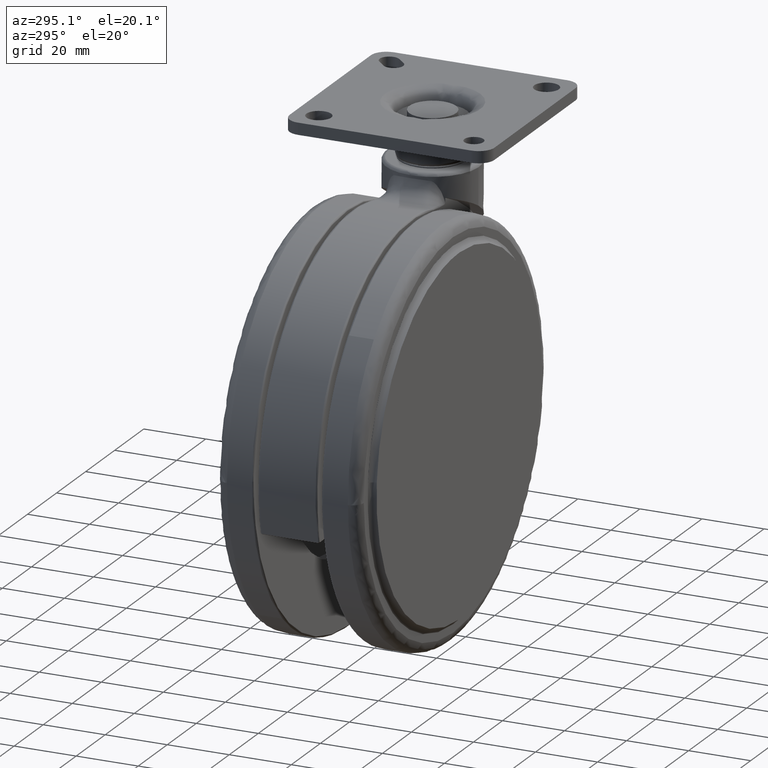
[diagram: clean part render]
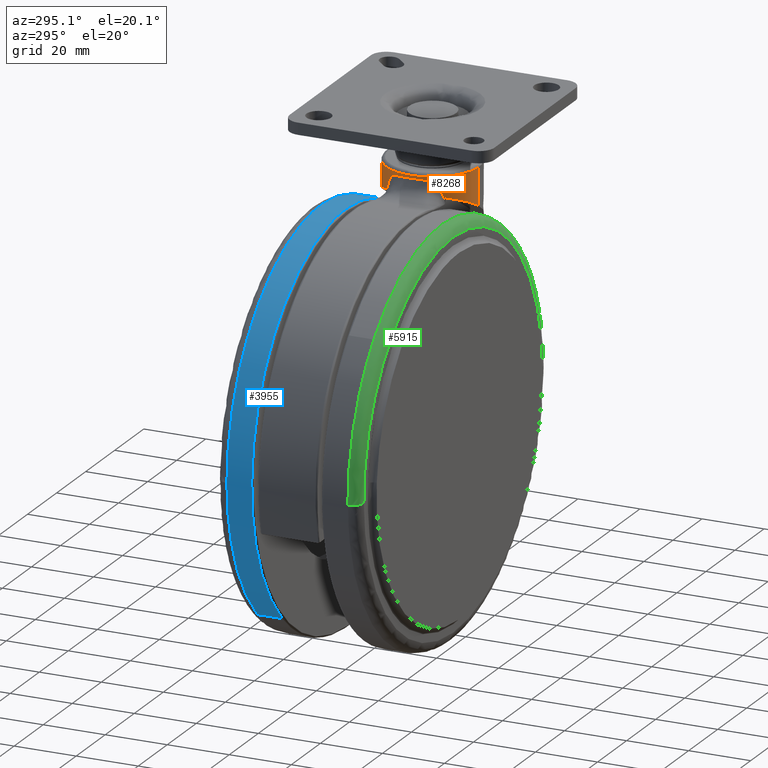
[diagram: same view with three faces highlighted in distinct colors, each labeled with its STEP entity id]
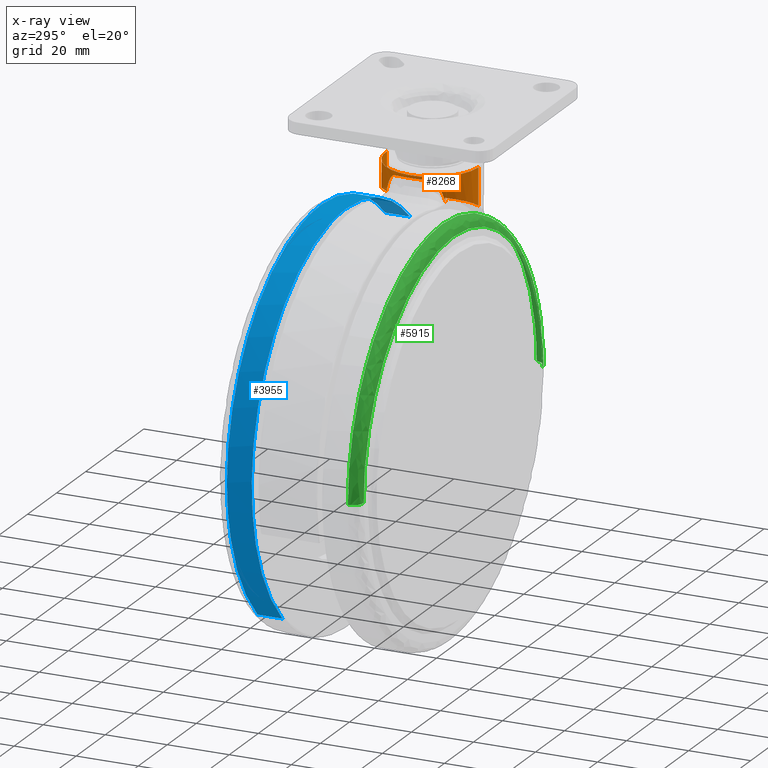
[diagram: x-ray of the same camera — body ghosted, the three highlighted faces saturated]
A machine part, auxiliary view with three faces highlighted in distinct colors.
The next image is the same camera in x-ray (body ghosted, the three faces saturated) — at least one of them is partly hidden behind the body in this view.
Their STEP definitions:

[orange] entity #8268 — the highlighted face is a freeform B-spline surface patch.
#7206=CARTESIAN_POINT('',(-14.995262839249721,0.376951431650091,-0.999999999963149));
#7207=VERTEX_POINT('',#7206);
#7223=CARTESIAN_POINT('',(-0.581027696793519,-14.988184940685739,-1.000003525327162));
#7224=VERTEX_POINT('',#7223);
#7225=CARTESIAN_POINT('',(-0.581027696793519,-14.988184940685739,-1.000003525327162));
#7226=CARTESIAN_POINT('',(-2.221881867319267,-14.923459520473660,-1.000003209881734));
#7227=CARTESIAN_POINT('',(-4.396318039646086,-14.478948089147041,-1.000002743903072));
#7228=CARTESIAN_POINT('',(-7.951715841885855,-12.878649637823409,-1.000001905507170));
#7229=CARTESIAN_POINT('',(-9.774755034183629,-11.504830959383879,-1.000001381199604));
#7230=CARTESIAN_POINT('',(-12.271773316455970,-8.842832239391411,-1.000000736492092));
#7231=CARTESIAN_POINT('',(-13.520004443380129,-6.845864435616425,-1.000000367163475));
#7232=CARTESIAN_POINT('',(-14.772648929708410,-3.157115976543185,-1.000000080154725));
#7233=CARTESIAN_POINT('',(-15.034982536868069,-1.204105920729850,-0.999999990851010));
#7234=CARTESIAN_POINT('',(-14.995262839249721,0.376951431650091,-0.999999999963149));
#7235=B_SPLINE_CURVE_WITH_KNOTS('',3,(#7225,#7226,#7227,#7228,#7229,#7230,#7231,#7232,#7233,#7234),.UNSPECIFIED.,.F.,.U.,(4,1,1,2,1,1,4),(-0.000005821422697,4.926888636849576,6.569186415890847,11.678558646066261,17.517832323458819,18.612697292125290,23.357096976029911),.UNSPECIFIED.);
#7236=EDGE_CURVE('',#7224,#7207,#7235,.T.);
#7690=CARTESIAN_POINT('',(0.581046438224664,14.988673614872880,-1.000003329813259));
#7691=VERTEX_POINT('',#7690);
#7705=CARTESIAN_POINT('',(-14.995262839249721,0.376951431650091,-0.999999999963149));
#7706=CARTESIAN_POINT('',(-14.945668679372339,2.356816824336658,-1.000000004435609));
#7707=CARTESIAN_POINT('',(-14.191006820130211,5.680076454444194,-1.000000144011741));
#7708=CARTESIAN_POINT('',(-12.106499277216470,9.018408399889520,-1.000000547292843));
#7709=CARTESIAN_POINT('',(-9.448302867714441,11.879272115115761,-1.000001085183200));
#7710=CARTESIAN_POINT('',(-7.267301224415199,13.270945977765820,-1.000001535882976));
#7711=CARTESIAN_POINT('',(-3.516030385572528,14.724302415414121,-1.000002372664652));
#7712=CARTESIAN_POINT('',(-1.459989990871364,15.069031651187650,-1.000002832269927));
#7713=CARTESIAN_POINT('',(0.581046438224664,14.988673614872880,-1.000003329813259));
#7714=B_SPLINE_CURVE_WITH_KNOTS('',3,(#7705,#7706,#7707,#7708,#7709,#7710,#7711,#7712,#7713),.UNSPECIFIED.,.F.,.U.,(4,1,1,1,2,4),(-0.000005633504745,5.941418121978291,10.026142665776630,11.697168434309081,17.638587521659240,23.765670615202790),.UNSPECIFIED.);
#7715=EDGE_CURVE('',#7207,#7691,#7714,.T.);
#7936=CARTESIAN_POINT('',(-0.581055671083553,-14.988745828731510,-12.853470431553250));
#7937=VERTEX_POINT('',#7936);
#8060=CARTESIAN_POINT('',(0.581049382154922,14.988741832706300,-13.551163716626951));
#8061=VERTEX_POINT('',#8060);
#8091=CARTESIAN_POINT('',(0.581049382154922,14.988741832706300,-13.551163716626951));
#8092=CARTESIAN_POINT('',(0.581046438224664,14.988673614872880,-1.000003329813259));
#8093=QUASI_UNIFORM_CURVE('',1,(#8091,#8092),.UNSPECIFIED.,.F.,.U.);
#8094=EDGE_CURVE('',#8061,#7691,#8093,.T.);
#8098=CARTESIAN_POINT('',(-0.581055671083553,-14.988745828731510,-12.853470431553250));
#8099=CARTESIAN_POINT('',(-0.581027696793519,-14.988184940685739,-1.000003525327162));
#8100=QUASI_UNIFORM_CURVE('',1,(#8098,#8099),.UNSPECIFIED.,.F.,.U.);
#8101=EDGE_CURVE('',#7937,#7224,#8100,.T.);
#8106=CARTESIAN_POINT('',(0.581049229520434,14.988741834886410,-14.178095141227219));
#8107=CARTESIAN_POINT('',(-14.407692605365950,15.569791064407077,-14.178095141227221));
#8108=CARTESIAN_POINT('',(-14.988741834886611,0.581049229520690,-14.178095141227219));
#8109=CARTESIAN_POINT('',(-15.569791064407276,-14.407692605365694,-14.178095141227221));
#8110=CARTESIAN_POINT('',(-0.581049229520889,-14.988741834886360,-14.178095141227219));
#8111=CARTESIAN_POINT('',(0.581049229520434,14.988741834886410,-0.373068681588902));
#8112=CARTESIAN_POINT('',(-14.407692605365950,15.569791064407077,-0.373068681588902));
#8113=CARTESIAN_POINT('',(-14.988741834886611,0.581049229520690,-0.373068681588902));
#8114=CARTESIAN_POINT('',(-15.569791064407276,-14.407692605365694,-0.373068681588902));
#8115=CARTESIAN_POINT('',(-0.581049229520889,-14.988741834886360,-0.373068681588902));
#8123=(BOUNDED_SURFACE()B_SPLINE_SURFACE(2,1,((#8106,#8111),(#8107,#8112),(#8108,#8113),(#8109,#8114),(#8110,#8115)),.UNSPECIFIED.,.F.,.F.,.U.)B_SPLINE_SURFACE_WITH_KNOTS((3,2,3),(2,2),(0.0,24.852813742385699,49.705627484771391),(0.0,13.805026459638320),.UNSPECIFIED.)GEOMETRIC_REPRESENTATION_ITEM()RATIONAL_B_SPLINE_SURFACE(((1.0,1.0),(0.707106781186548,0.707106781186548),(1.0,1.0),(0.707106781186548,0.707106781186548),(1.0,1.0)))REPRESENTATION_ITEM('')SURFACE());
#8124=CARTESIAN_POINT('',(-11.608186766244261,-9.499999999999840,-7.649383314007720));
#8125=VERTEX_POINT('',#8124);
#8126=CARTESIAN_POINT('',(-11.608186766244261,-9.499999999999840,-7.649383314007720));
#8127=CARTESIAN_POINT('',(-11.213146701409499,-9.982704767841632,-7.794106785338895));
#8128=CARTESIAN_POINT('',(-10.794725856363350,-10.432794721896300,-7.951549861427642));
#8129=CARTESIAN_POINT('',(-9.915365130329265,-11.271860156883781,-8.293497244719189));
#8130=CARTESIAN_POINT('',(-9.454406212123985,-11.660813418175790,-8.478002456493375));
#8131=CARTESIAN_POINT('',(-8.732805053693616,-12.199515090925781,-8.776952296718111));
#8132=CARTESIAN_POINT('',(-8.487231199305013,-12.371609538743749,-8.880307841373842));
#8133=CARTESIAN_POINT('',(-8.111420180187809,-12.618528919298340,-9.041202718210380));
#8134=CARTESIAN_POINT('',(-7.984907412990158,-12.698963949904609,-9.095811753587041));
#8135=CARTESIAN_POINT('',(-7.729406778885008,-12.856076344906031,-9.207041276619554));
#8136=CARTESIAN_POINT('',(-7.600998591352334,-12.932396112661500,-9.263409746149240));
#8137=CARTESIAN_POINT('',(-6.956281742583611,-13.302777511497810,-9.548836610649722));
#8138=CARTESIAN_POINT('',(-6.431469403289630,-13.563616469048860,-9.788858391972797));
#8139=CARTESIAN_POINT('',(-5.366247244177936,-14.019232091139610,-10.293246057743650));
#8140=CARTESIAN_POINT('',(-4.825828911311247,-14.213988494602020,-10.557611620882501));
#8141=CARTESIAN_POINT('',(-4.004717573826369,-14.458342878441931,-10.973431774860110));
#8142=CARTESIAN_POINT('',(-3.729260721254046,-14.531813636343831,-11.115253351413910));
#8143=CARTESIAN_POINT('',(-3.174981410175787,-14.662894723630590,-11.405532700699910));
#8144=CARTESIAN_POINT('',(-2.898437064486981,-14.719967938526519,-11.552797918032599));
#8145=CARTESIAN_POINT('',(-2.070801126105388,-14.866933017860561,-12.000919558977969));
#8146=CARTESIAN_POINT('',(-1.521656517532457,-14.932655389831000,-12.308127530862080));
#8147=CARTESIAN_POINT('',(-0.843730397084025,-14.976828100546451,-12.699902509917001));
#8148=CARTESIAN_POINT('',(-0.712310902942108,-14.983653738026650,-12.776438463395770));
#8149=CARTESIAN_POINT('',(-0.581055671083553,-14.988745828731510,-12.853470431553250));
#8150=B_SPLINE_CURVE_WITH_KNOTS('',3,(#8126,#8127,#8128,#8129,#8130,#8131,#8132,#8133,#8134,#8135,#8136,#8137,#8138,#8139,#8140,#8141,#8142,#8143,#8144,#8145,#8146,#8147,#8148,#8149),.UNSPECIFIED.,.F.,.U.,(4,2,2,2,2,2,2,2,2,2,2,4),(0.0,0.062500000000000,0.125000000000001,0.156250000000001,0.171875000000001,0.187500000000002,0.250000000000002,0.312500000000003,0.343750000000003,0.375000000000003,0.437500000000003,0.452552536085894),.UNSPECIFIED.);
#8151=EDGE_CURVE('',#8125,#7937,#8150,.T.);
#8152=ORIENTED_EDGE('',*,*,#8151,.T.);
#8153=ORIENTED_EDGE('',*,*,#8101,.T.);
#8154=ORIENTED_EDGE('',*,*,#7236,.T.);
#8155=ORIENTED_EDGE('',*,*,#7715,.T.);
#8156=ORIENTED_EDGE('',*,*,#8094,.F.);
#8157=CARTESIAN_POINT('',(-11.759657102265839,9.311845404490668,-7.594095425069170));
#8158=VERTEX_POINT('',#8157);
#8159=CARTESIAN_POINT('',(0.581049382154922,14.988741832706300,-13.551163716626951));
#8160=CARTESIAN_POINT('',(0.567863276956664,14.989252995358250,-13.543067346910110));
#8161=CARTESIAN_POINT('',(0.554676540455184,14.989746757398921,-13.534976786999660));
#8162=CARTESIAN_POINT('',(-0.005331310199047,15.009975747025100,-13.191653768315151));
#8163=CARTESIAN_POINT('',(-0.553241094492944,14.999890170460230,-12.866390257197571));
#8164=CARTESIAN_POINT('',(-1.650785519755342,14.919037659611631,-12.235261397926021));
#8165=CARTESIAN_POINT('',(-2.200421604358285,14.848277564310891,-11.929396827090439));
#8166=CARTESIAN_POINT('',(-3.300747192293041,14.643027953131190,-11.336668702007829));
#8167=CARTESIAN_POINT('',(-3.851439874269489,14.508559589353620,-11.049805224653470));
#8168=CARTESIAN_POINT('',(-4.677551670809693,14.254945567359069,-10.633566710998011));
#8169=CARTESIAN_POINT('',(-4.952931890268636,14.161734726244219,-10.497164397408630));
#8170=CARTESIAN_POINT('',(-5.365898573099035,14.008165073748099,-10.296062698626830));
#8171=CARTESIAN_POINT('',(-5.503116323320811,13.954831070907410,-10.229818639232461));
#8172=CARTESIAN_POINT('',(-5.775571346812553,13.844290341921530,-10.099397160222910));
#8173=CARTESIAN_POINT('',(-5.910976918198898,13.787021488536579,-10.035137676542810));
#8174=CARTESIAN_POINT('',(-6.583853983587343,13.490693853561959,-9.718489828398015));
#8175=CARTESIAN_POINT('',(-7.108914835805527,13.221770493498580,-9.480024445467352));
#8176=CARTESIAN_POINT('',(-8.130851299442035,12.619078554885601,-9.030497017110301));
#8177=CARTESIAN_POINT('',(-8.627736776555658,12.285324785509699,-8.819436545863193));
#8178=CARTESIAN_POINT('',(-9.349756219368214,11.733448520644901,-8.522138564417217));
#8179=CARTESIAN_POINT('',(-9.586534361253344,11.540929073723300,-8.426259333577466));
#8180=CARTESIAN_POINT('',(-9.935476041879438,11.238771371970079,-8.287156499839671));
#8181=CARTESIAN_POINT('',(-10.050751484344550,11.135820769511909,-8.241575204358481));
#8182=CARTESIAN_POINT('',(-10.279150135872440,10.925345891352300,-8.151970193215634));
#8183=CARTESIAN_POINT('',(-10.392054106092671,10.818015549810090,-8.108033242876987));
#8184=CARTESIAN_POINT('',(-10.725614816827321,10.490862732952870,-7.979221691128639));
#8185=CARTESIAN_POINT('',(-10.941617562590830,10.265432102346010,-7.897150303212587));
#8186=CARTESIAN_POINT('',(-11.360579932878791,9.799761041955502,-7.740247385621249));
#8187=CARTESIAN_POINT('',(-11.563698521107581,9.559315712310598,-7.665358631376420));
#8188=CARTESIAN_POINT('',(-11.759657102265839,9.311845404490668,-7.594095425069170));
#8189=B_SPLINE_CURVE_WITH_KNOTS('',3,(#8159,#8160,#8161,#8162,#8163,#8164,#8165,#8166,#8167,#8168,#8169,#8170,#8171,#8172,#8173,#8174,#8175,#8176,#8177,#8178,#8179,#8180,#8181,#8182,#8183,#8184,#8185,#8186,#8187,#8188),.UNSPECIFIED.,.F.,.U.,(4,2,2,2,2,2,2,2,2,2,2,2,2,2,4),(0.498492722263758,0.499999999999999,0.562499999999999,0.624999999999999,0.687499999999999,0.718749999999999,0.734375000000000,0.750000000000000,0.812500000000000,0.875000000000000,0.906250000000000,0.921875000000000,0.937500000000000,0.968750000000000,1.0),.UNSPECIFIED.);
#8190=EDGE_CURVE('',#8061,#8158,#8189,.T.);
#8191=ORIENTED_EDGE('',*,*,#8190,.T.);
#8192=CARTESIAN_POINT('',(-11.760727374015181,9.310412290629619,-7.908198592691811));
#8193=VERTEX_POINT('',#8192);
#8194=CARTESIAN_POINT('',(-11.759657102265839,9.311845404490668,-7.594095425069170));
#8195=CARTESIAN_POINT('',(-11.760013899878670,9.311367731828524,-7.698796480943384));
#8196=CARTESIAN_POINT('',(-11.760370657129981,9.310890027206249,-7.803497536817597));
#8197=CARTESIAN_POINT('',(-11.760727374015181,9.310412290629619,-7.908198592691811));
#8198=B_SPLINE_CURVE_WITH_KNOTS('',3,(#8194,#8195,#8196,#8197),.UNSPECIFIED.,.F.,.U.,(4,4),(0.0,0.999580436603883),.UNSPECIFIED.);
#8199=EDGE_CURVE('',#8158,#8193,#8198,.T.);
#8200=ORIENTED_EDGE('',*,*,#8199,.T.);
#8201=CARTESIAN_POINT('',(-11.760715707959699,-9.310304679603330,-7.917211366837540));
#8202=VERTEX_POINT('',#8201);
#8203=CARTESIAN_POINT('',(-11.760727374015181,9.310412290629619,-7.908198592691811));
#8204=CARTESIAN_POINT('',(-11.761032507318090,9.310027589664697,-7.906811290454749));
#8205=CARTESIAN_POINT('',(-11.811150911126150,9.246832317487588,-7.678998866635697));
#8206=CARTESIAN_POINT('',(-11.911873365987450,9.117319093893114,-7.238243415182060));
#8207=CARTESIAN_POINT('',(-12.066282576899690,8.912045729361019,-6.602219687325074));
#8208=CARTESIAN_POINT('',(-12.221042048009080,8.698613936952331,-6.006250171979874));
#8209=CARTESIAN_POINT('',(-12.375670123911140,8.477199051662620,-5.450207808271371));
#8210=CARTESIAN_POINT('',(-12.529880623912801,8.247576117848295,-4.934107720402886));
#8211=CARTESIAN_POINT('',(-12.683306686284570,8.009647995236097,-4.457920500191798));
#8212=CARTESIAN_POINT('',(-12.835653673852590,7.763194320568684,-4.021656317350209));
#8213=CARTESIAN_POINT('',(-13.022600161376690,7.447083565497170,-3.529935511116535));
#8214=CARTESIAN_POINT('',(-13.242369550566471,7.052172530468475,-3.024332027731216));
#8215=CARTESIAN_POINT('',(-13.463622512455199,6.617308919876209,-2.629660494846905));
#8216=CARTESIAN_POINT('',(-13.632667077788620,6.258301059152105,-2.409797513450673));
#8217=CARTESIAN_POINT('',(-13.745696863789380,6.005557130480864,-2.296904276879198));
#8218=CARTESIAN_POINT('',(-13.863580017014311,5.728641353894219,-2.234406827834977));
#8219=CARTESIAN_POINT('',(-14.105629372231100,5.126833159169156,-2.154525581439933));
#8220=CARTESIAN_POINT('',(-14.434663364604530,4.152373806960688,-2.057161635212194));
#8221=CARTESIAN_POINT('',(-14.755082852627959,2.812716150977963,-1.961972558395183));
#8222=CARTESIAN_POINT('',(-14.954112045907300,1.421903150005391,-1.905886795580871));
#8223=CARTESIAN_POINT('',(-15.044359428748200,-0.465381592406427,-1.881091469284715));
#8224=CARTESIAN_POINT('',(-14.823746505829551,-2.799940062199902,-1.940890072061245));
#8225=CARTESIAN_POINT('',(-14.285656261287439,-4.670150606164357,-2.099132385162966));
#8226=CARTESIAN_POINT('',(-13.902043270656749,-5.633694930984579,-2.219574988953552));
#8227=CARTESIAN_POINT('',(-13.799667463511200,-5.881261604653441,-2.256911453255461));
#8228=CARTESIAN_POINT('',(-13.613616156468931,-6.308454067240988,-2.409548529422549));
#8229=CARTESIAN_POINT('',(-13.324269993566300,-6.902530881279645,-2.852900394690433));
#8230=CARTESIAN_POINT('',(-12.976066298922181,-7.535887584762198,-3.637542233632385));
#8231=CARTESIAN_POINT('',(-12.625269943091080,-8.108846986873571,-4.636525783229013));
#8232=CARTESIAN_POINT('',(-12.272141758604301,-8.632750937826849,-5.820176902401713));
#8233=CARTESIAN_POINT('',(-11.984181272920120,-9.025869856192037,-6.928393151273183));
#8234=CARTESIAN_POINT('',(-11.820087373755690,-9.235485779231102,-7.649805863315511));
#8235=CARTESIAN_POINT('',(-11.760715707959699,-9.310304679603330,-7.917211366837540));
#8236=B_SPLINE_CURVE_WITH_KNOTS('',3,(#8203,#8204,#8205,#8206,#8207,#8208,#8209,#8210,#8211,#8212,#8213,#8214,#8215,#8216,#8217,#8218,#8219,#8220,#8221,#8222,#8223,#8224,#8225,#8226,#8227,#8228,#8229,#8230,#8231,#8232,#8233,#8234,#8235),.UNSPECIFIED.,.F.,.U.,(4,1,1,1,1,1,1,1,1,1,1,1,1,1,1,1,1,1,1,1,1,1,1,1,1,1,1,1,1,1,4),(0.026974525377899,0.027132948878175,0.052990535331715,0.077592784479808,0.100962948618265,0.123128157900532,0.144120214834351,0.163976559572438,0.182741431482123,0.200467243951502,0.230012875593796,0.255534450696687,0.267515376235882,0.278763989496629,0.287552378311506,0.300508699239687,0.349108472927283,0.398564435423337,0.448917106041140,0.500204875753624,0.601676374579347,0.699706600447437,0.708917168554291,0.714075260115650,0.728799854409215,0.761210144402907,0.798366576062661,0.843054119495339,0.890431560307077,0.942652608615340,0.973217928481687),.UNSPECIFIED.);
#8237=EDGE_CURVE('',#8193,#8202,#8236,.T.);
#8238=ORIENTED_EDGE('',*,*,#8237,.T.);
#8239=CARTESIAN_POINT('',(-11.608186766244261,-9.499999999999801,-9.261782082419348));
#8240=VERTEX_POINT('',#8239);
#8241=CARTESIAN_POINT('',(-11.760715707959699,-9.310304679603330,-7.917211366837540));
#8242=CARTESIAN_POINT('',(-11.758016561440410,-9.313713435829669,-7.924977447076127));
#8243=CARTESIAN_POINT('',(-11.749920298452070,-9.323938207655431,-7.948279049944327));
#8244=CARTESIAN_POINT('',(-11.739784622680711,-9.336702835427875,-7.999436515091959));
#8245=CARTESIAN_POINT('',(-11.724646947037870,-9.355726086020008,-8.073827300216186));
#8246=CARTESIAN_POINT('',(-11.708355798520300,-9.376118665924938,-8.163370805353759));
#8247=CARTESIAN_POINT('',(-11.692009865751841,-9.396506911849984,-8.256549008160627));
#8248=CARTESIAN_POINT('',(-11.677675311105689,-9.414325926238366,-8.344646904102717));
#8249=CARTESIAN_POINT('',(-11.665483889857761,-9.429438773733027,-8.426645350773201));
#8250=CARTESIAN_POINT('',(-11.655300962844780,-9.442031545538793,-8.502521274790519));
#8251=CARTESIAN_POINT('',(-11.645959475776630,-9.453564875591706,-8.588128844768137));
#8252=CARTESIAN_POINT('',(-11.632978714686351,-9.469555583813214,-8.709100388778204));
#8253=CARTESIAN_POINT('',(-11.621852076992131,-9.483229023463723,-8.887969366660579));
#8254=CARTESIAN_POINT('',(-11.613998106309470,-9.492869112891393,-9.058975269849265));
#8255=CARTESIAN_POINT('',(-11.608090069294590,-9.500108288975703,-9.189872046284298));
#8256=CARTESIAN_POINT('',(-11.608158142884401,-9.500032054726821,-9.240495921392743));
#8257=CARTESIAN_POINT('',(-11.608186766244261,-9.499999999999801,-9.261782082419348));
#8258=B_SPLINE_CURVE_WITH_KNOTS('',3,(#8241,#8242,#8243,#8244,#8245,#8246,#8247,#8248,#8249,#8250,#8251,#8252,#8253,#8254,#8255,#8256,#8257),.UNSPECIFIED.,.F.,.U.,(4,1,1,1,1,1,1,1,1,1,1,1,1,1,4),(0.000035867798653,0.019439373809956,0.058251354912004,0.116667597851933,0.190608898438667,0.261772940197439,0.328001350036767,0.389320007282076,0.445761545294118,0.497367850466181,0.579020122867662,0.713630699162877,0.889499660060882,0.953537179356582,1.0),.UNSPECIFIED.);
#8259=EDGE_CURVE('',#8202,#8240,#8258,.T.);
#8260=ORIENTED_EDGE('',*,*,#8259,.T.);
#8261=CARTESIAN_POINT('',(-11.608186766244261,-9.499999999999801,-9.261782082419348));
#8262=CARTESIAN_POINT('',(-11.608186766244261,-9.499999999999840,-7.649383314007720));
#8263=QUASI_UNIFORM_CURVE('',1,(#8261,#8262),.UNSPECIFIED.,.F.,.U.);
#8264=EDGE_CURVE('',#8240,#8125,#8263,.T.);
#8265=ORIENTED_EDGE('',*,*,#8264,.T.);
#8266=EDGE_LOOP('',(#8152,#8153,#8154,#8155,#8156,#8191,#8200,#8238,#8260,#8265));
#8267=FACE_OUTER_BOUND('',#8266,.T.);
#8268=ADVANCED_FACE('',(#8267),#8123,.T.);

[blue] entity #3955 — the highlighted face is a freeform B-spline surface patch.
#3720=CARTESIAN_POINT('',(-78.913360412238120,11.499999998409180,-119.423029717504900));
#3721=VERTEX_POINT('',#3720);
#3722=CARTESIAN_POINT('',(-99.979472303414468,11.499999996547491,-69.866543796182043));
#3723=VERTEX_POINT('',#3722);
#3724=CARTESIAN_POINT('',(-78.913360412238205,11.499999998409180,-119.423029717505050));
#3725=CARTESIAN_POINT('',(-100.0,11.499999997349910,-100.100687003389960));
#3726=CARTESIAN_POINT('',(-99.999999999999986,11.499999996590340,-71.500000000000014));
#3727=CARTESIAN_POINT('',(-99.999999999999986,11.499999996568643,-70.683142911979829));
#3728=CARTESIAN_POINT('',(-99.979472303414468,11.499999996547491,-69.866543796182043));
#3736=(BOUNDED_CURVE()B_SPLINE_CURVE(2,(#3724,#3725,#3726,#3727,#3728),.UNSPECIFIED.,.F.,.U.)B_SPLINE_CURVE_WITH_KNOTS((3,2,3),(0.618415199373145,0.750000000000000,0.754420108230195),.UNSPECIFIED.)CURVE()GEOMETRIC_REPRESENTATION_ITEM()RATIONAL_B_SPLINE_CURVE((0.853959782036605,0.845838816789896,1.0,0.994821521091817,0.989826157681570))REPRESENTATION_ITEM(''));
#3737=EDGE_CURVE('',#3721,#3723,#3736,.T.);
#3823=CARTESIAN_POINT('',(-35.0,11.500000000000000,-6.499999999999992));
#3824=VERTEX_POINT('',#3823);
#3825=CARTESIAN_POINT('',(-99.979472303414468,11.499999996547491,-69.866543796182043));
#3826=CARTESIAN_POINT('',(-98.386561951741172,11.499999998273744,-6.499999999999998));
#3827=CARTESIAN_POINT('',(-35.0,11.500000000000000,-6.499999999999992));
#3835=(BOUNDED_CURVE()B_SPLINE_CURVE(2,(#3825,#3826,#3827),.UNSPECIFIED.,.F.,.U.)B_SPLINE_CURVE_WITH_KNOTS((3,3),(0.754420108230195,1.0),.UNSPECIFIED.)CURVE()GEOMETRIC_REPRESENTATION_ITEM()RATIONAL_B_SPLINE_CURVE((0.989826157681570,0.712285260094730,1.0))REPRESENTATION_ITEM(''));
#3836=EDGE_CURVE('',#3723,#3824,#3835,.T.);
#3842=CARTESIAN_POINT('',(8.913360412238095,11.499999998409180,-23.576970282495068));
#3843=VERTEX_POINT('',#3842);
#3859=CARTESIAN_POINT('',(-35.0,11.500000000000000,-6.499999999999992));
#3860=CARTESIAN_POINT('',(-9.722884836369158,11.499999999345359,-6.499999999999995));
#3861=CARTESIAN_POINT('',(8.913360412238198,11.499999998409180,-23.576970282494962));
#3869=(BOUNDED_CURVE()B_SPLINE_CURVE(2,(#3859,#3860,#3861),.UNSPECIFIED.,.F.,.U.)B_SPLINE_CURVE_WITH_KNOTS((3,3),(0.0,0.118415199373145),.UNSPECIFIED.)CURVE()GEOMETRIC_REPRESENTATION_ITEM()RATIONAL_B_SPLINE_CURVE((1.0,0.861267964396651,0.853959782036605))REPRESENTATION_ITEM(''));
#3870=EDGE_CURVE('',#3824,#3843,#3869,.T.);
#3875=CARTESIAN_POINT('',(8.913363495017883,19.700000000554891,-23.576973107341932));
#3876=CARTESIAN_POINT('',(-39.009663397640196,19.700000000554983,20.336390387675955));
#3877=CARTESIAN_POINT('',(-82.923026892658072,19.700000000555050,-27.586636504982120));
#3878=CARTESIAN_POINT('',(-126.836390387675950,19.700000000555139,-75.509663397640196));
#3879=CARTESIAN_POINT('',(-78.913363495017876,19.700000000555050,-119.423026892658100));
#3880=CARTESIAN_POINT('',(8.913363495017869,11.294999996447100,-23.576973107341932));
#3881=CARTESIAN_POINT('',(-39.009663397640210,11.294999996447189,20.336390387675955));
#3882=CARTESIAN_POINT('',(-82.923026892658086,11.294999996447270,-27.586636504982120));
#3883=CARTESIAN_POINT('',(-126.836390387675990,11.294999996447345,-75.509663397640196));
#3884=CARTESIAN_POINT('',(-78.913363495017904,11.294999996447260,-119.423026892658100));
#3892=(BOUNDED_SURFACE()B_SPLINE_SURFACE(2,1,((#3875,#3880),(#3876,#3881),(#3877,#3882),(#3878,#3883),(#3879,#3884)),.UNSPECIFIED.,.F.,.F.,.U.)B_SPLINE_SURFACE_WITH_KNOTS((3,2,3),(2,2),(0.0,107.695526217004700,215.391052434009400),(0.0,8.405000004107789),.UNSPECIFIED.)GEOMETRIC_REPRESENTATION_ITEM()RATIONAL_B_SPLINE_SURFACE(((1.0,1.0),(0.707106781186548,0.707106781186548),(1.0,1.0),(0.707106781186548,0.707106781186548),(1.0,1.0)))REPRESENTATION_ITEM('')SURFACE());
#3893=CARTESIAN_POINT('',(-35.0,19.500000000000000,-6.499999999999996));
#3894=VERTEX_POINT('',#3893);
#3895=CARTESIAN_POINT('',(8.913360374643663,19.500000000214389,-23.576970248046120));
#3896=VERTEX_POINT('',#3895);
#3897=CARTESIAN_POINT('',(-35.0,19.500000000000000,-6.499999999999996));
#3898=CARTESIAN_POINT('',(-9.722884865720200,19.500000000088882,-6.499999999999995));
#3899=CARTESIAN_POINT('',(8.913360374643759,19.500000000214452,-23.576970248046017));
#3907=(BOUNDED_CURVE()B_SPLINE_CURVE(2,(#3897,#3898,#3899),.UNSPECIFIED.,.F.,.U.)B_SPLINE_CURVE_WITH_KNOTS((3,3),(0.0,0.118415199254721),.UNSPECIFIED.)CURVE()GEOMETRIC_REPRESENTATION_ITEM()RATIONAL_B_SPLINE_CURVE((1.0,0.861267964535394,0.853959782051222))REPRESENTATION_ITEM(''));
#3908=EDGE_CURVE('',#3894,#3896,#3907,.T.);
#3909=ORIENTED_EDGE('',*,*,#3908,.F.);
#3910=CARTESIAN_POINT('',(-99.999999999999986,19.500000000457110,-71.500000000000000));
#3911=VERTEX_POINT('',#3910);
#3912=CARTESIAN_POINT('',(-99.999999999999986,19.500000000457110,-71.500000000000000));
#3913=CARTESIAN_POINT('',(-99.999999999999986,19.500000000228557,-6.499999999999993));
#3914=CARTESIAN_POINT('',(-35.0,19.500000000000000,-6.499999999999996));
#3922=(BOUNDED_CURVE()B_SPLINE_CURVE(2,(#3912,#3913,#3914),.UNSPECIFIED.,.F.,.U.)B_SPLINE_CURVE_WITH_KNOTS((3,3),(0.750000000000000,1.0),.UNSPECIFIED.)CURVE()GEOMETRIC_REPRESENTATION_ITEM()RATIONAL_B_SPLINE_CURVE((1.0,0.707106781186547,1.0))REPRESENTATION_ITEM(''));
#3923=EDGE_CURVE('',#3911,#3894,#3922,.T.);
#3924=ORIENTED_EDGE('',*,*,#3923,.F.);
#3925=CARTESIAN_POINT('',(-78.913360374643673,19.500000000214389,-119.423029751953910));
#3926=VERTEX_POINT('',#3925);
#3927=CARTESIAN_POINT('',(-78.913360374643801,19.500000000214452,-119.423029751954020));
#3928=CARTESIAN_POINT('',(-100.0,19.500000000356540,-100.100687033821540));
#3929=CARTESIAN_POINT('',(-99.999999999999986,19.500000000457110,-71.500000000000000));
#3937=(BOUNDED_CURVE()B_SPLINE_CURVE(2,(#3927,#3928,#3929),.UNSPECIFIED.,.F.,.U.)B_SPLINE_CURVE_WITH_KNOTS((3,3),(0.618415199254721,0.750000000000000),.UNSPECIFIED.)CURVE()GEOMETRIC_REPRESENTATION_ITEM()RATIONAL_B_SPLINE_CURVE((0.853959782051222,0.845838816651153,1.0))REPRESENTATION_ITEM(''));
#3938=EDGE_CURVE('',#3926,#3911,#3937,.T.);
#3939=ORIENTED_EDGE('',*,*,#3938,.F.);
#3940=CARTESIAN_POINT('',(-78.913360374643673,19.500000000214389,-119.423029751953910));
#3941=CARTESIAN_POINT('',(-78.913360412238120,11.499999998409180,-119.423029717504900));
#3942=QUASI_UNIFORM_CURVE('',1,(#3940,#3941),.UNSPECIFIED.,.F.,.U.);
#3943=EDGE_CURVE('',#3926,#3721,#3942,.T.);
#3944=ORIENTED_EDGE('',*,*,#3943,.T.);
#3945=ORIENTED_EDGE('',*,*,#3737,.T.);
#3946=ORIENTED_EDGE('',*,*,#3836,.T.);
#3947=ORIENTED_EDGE('',*,*,#3870,.T.);
#3948=CARTESIAN_POINT('',(8.913360374643663,19.500000000214389,-23.576970248046120));
#3949=CARTESIAN_POINT('',(8.913360412238095,11.499999998409180,-23.576970282495068));
#3950=QUASI_UNIFORM_CURVE('',1,(#3948,#3949),.UNSPECIFIED.,.F.,.U.);
#3951=EDGE_CURVE('',#3896,#3843,#3950,.T.);
#3952=ORIENTED_EDGE('',*,*,#3951,.F.);
#3953=EDGE_LOOP('',(#3909,#3924,#3939,#3944,#3945,#3946,#3947,#3952));
#3954=FACE_OUTER_BOUND('',#3953,.T.);
#3955=ADVANCED_FACE('',(#3954),#3892,.T.);

[green] entity #5915 — the highlighted face is a freeform B-spline surface patch.
#5619=CARTESIAN_POINT('',(-82.149334773538939,-19.500000000287390,-26.756953273019601));
#5620=VERTEX_POINT('',#5619);
#5621=CARTESIAN_POINT('',(-35.0,-19.500000000000000,-6.499999999999996));
#5622=VERTEX_POINT('',#5621);
#5623=CARTESIAN_POINT('',(-82.149334773538968,-19.500000000287365,-26.756953273019619));
#5624=CARTESIAN_POINT('',(-62.926204453795002,-19.500000000118607,-6.499999999999993));
#5625=CARTESIAN_POINT('',(-35.0,-19.500000000000000,-6.499999999999996));
#5633=(BOUNDED_CURVE()B_SPLINE_CURVE(2,(#5623,#5624,#5625),.UNSPECIFIED.,.F.,.U.)B_SPLINE_CURVE_WITH_KNOTS((3,3),(0.871049524440577,1.0),.UNSPECIFIED.)CURVE()GEOMETRIC_REPRESENTATION_ITEM()RATIONAL_B_SPLINE_CURVE((0.853699661533722,0.848925120583501,1.0))REPRESENTATION_ITEM(''));
#5634=EDGE_CURVE('',#5620,#5622,#5633,.T.);
#5636=CARTESIAN_POINT('',(29.994867873247980,-19.500000000559101,-70.683207407577925));
#5637=VERTEX_POINT('',#5636);
#5638=CARTESIAN_POINT('',(-35.0,-19.500000000000000,-6.499999999999996));
#5639=CARTESIAN_POINT('',(29.188275443971317,-19.500000000279559,-6.499999999999994));
#5640=CARTESIAN_POINT('',(29.994867873247980,-19.500000000559101,-70.683207407577925));
#5648=(BOUNDED_CURVE()B_SPLINE_CURVE(2,(#5638,#5639,#5640),.UNSPECIFIED.,.F.,.U.)B_SPLINE_CURVE_WITH_KNOTS((3,3),(0.0,0.247784295921717),.UNSPECIFIED.)CURVE()GEOMETRIC_REPRESENTATION_ITEM()RATIONAL_B_SPLINE_CURVE((1.0,0.709702639984253,0.994854295643987))REPRESENTATION_ITEM(''));
#5649=EDGE_CURVE('',#5622,#5637,#5648,.T.);
#5702=CARTESIAN_POINT('',(-99.994867873247983,-19.500000000559101,-72.316792592422104));
#5703=VERTEX_POINT('',#5702);
#5704=CARTESIAN_POINT('',(-99.994867873247983,-19.500000000559098,-72.316792592422104));
#5705=CARTESIAN_POINT('',(-99.999999999999986,-19.500000000557360,-71.908412419474928));
#5706=CARTESIAN_POINT('',(-99.999999999999986,-19.500000000555609,-71.499999999999986));
#5707=CARTESIAN_POINT('',(-99.999999999999986,-19.500000000444075,-45.567630065515793));
#5708=CARTESIAN_POINT('',(-82.149334773538968,-19.500000000287365,-26.756953273019619));
#5716=(BOUNDED_CURVE()B_SPLINE_CURVE(2,(#5704,#5705,#5706,#5707,#5708),.UNSPECIFIED.,.F.,.U.)B_SPLINE_CURVE_WITH_KNOTS((3,2,3),(0.747784295921717,0.750000000000000,0.871049524440577),.UNSPECIFIED.)CURVE()GEOMETRIC_REPRESENTATION_ITEM()RATIONAL_B_SPLINE_CURVE((0.994854295643986,0.997404141202294,1.0,0.858181660603046,0.853699661533722))REPRESENTATION_ITEM(''));
#5717=EDGE_CURVE('',#5703,#5620,#5716,.T.);
#5827=CARTESIAN_POINT('',(-96.251783593826133,-22.991527782076986,-72.269753132037877));
#5828=CARTESIAN_POINT('',(-97.021536725864010,-22.991527782076982,-11.017969538211746));
#5829=CARTESIAN_POINT('',(-35.769753132037877,-22.991527782076986,-10.248216406173869));
#5830=CARTESIAN_POINT('',(25.482030461788252,-22.991527782076982,-9.478463274135997));
#5831=CARTESIAN_POINT('',(26.251783593826129,-22.991527782076986,-70.730246867962123));
#5832=CARTESIAN_POINT('',(-100.266226502939090,-23.271379951776357,-72.320202765034168));
#5833=CARTESIAN_POINT('',(-101.086429267973190,-23.271379951776350,-7.053976262095119));
#5834=CARTESIAN_POINT('',(-35.820202765034168,-23.271379951776357,-6.233773497060946));
#5835=CARTESIAN_POINT('',(29.446023737904873,-23.271379951776350,-5.413570732026785));
#5836=CARTESIAN_POINT('',(30.266226502939062,-23.271379951776357,-70.679797234965861));
#5837=CARTESIAN_POINT('',(-99.986396317483909,-19.256620061886441,-72.316686130104458));
#5838=CARTESIAN_POINT('',(-100.803082447588390,-19.256620061886444,-7.330289812620549));
#5839=CARTESIAN_POINT('',(-35.816686130104465,-19.256620061886441,-6.513603682516078));
#5840=CARTESIAN_POINT('',(29.169710187379451,-19.256620061886444,-5.696917552411623));
#5841=CARTESIAN_POINT('',(29.986396317483923,-19.256620061886441,-70.683313869895542));
#5849=(BOUNDED_SURFACE()B_SPLINE_SURFACE(2,2,((#5827,#5832,#5837),(#5828,#5833,#5838),(#5829,#5834,#5839),(#5830,#5835,#5840),(#5831,#5836,#5841)),.UNSPECIFIED.,.F.,.F.,.U.)B_SPLINE_SURFACE_WITH_KNOTS((3,2,3),(3,3),(0.0,107.681488975515510,215.362977951031010),(0.0,6.378308709147061),.UNSPECIFIED.)GEOMETRIC_REPRESENTATION_ITEM()RATIONAL_B_SPLINE_SURFACE(((0.916342095240933,0.601326568744382,0.916342106857795),(0.647951709431553,0.425202094466791,0.647951717645915),(0.916342095240933,0.601326568744382,0.916342106857795),(0.647951709431553,0.425202094466791,0.647951717645915),(0.916342095240933,0.601326568744382,0.916342106857795)))REPRESENTATION_ITEM('')SURFACE());
#5850=ORIENTED_EDGE('',*,*,#5634,.F.);
#5851=ORIENTED_EDGE('',*,*,#5717,.F.);
#5852=CARTESIAN_POINT('',(-96.495144227765422,-23.0,-72.272811460689994));
#5853=VERTEX_POINT('',#5852);
#5854=CARTESIAN_POINT('',(-96.495144227765437,-23.000000000000004,-72.272811460689994));
#5855=CARTESIAN_POINT('',(-99.994867872640313,-22.999999990671174,-72.316792596286291));
#5856=CARTESIAN_POINT('',(-99.994867873247983,-19.500000000559101,-72.316792592422104));
#5864=(BOUNDED_CURVE()B_SPLINE_CURVE(2,(#5854,#5855,#5856),.UNSPECIFIED.,.F.,.U.)B_SPLINE_CURVE_WITH_KNOTS((3,3),(-1.734750788888820,-0.265249208507586),.UNSPECIFIED.)CURVE()GEOMETRIC_REPRESENTATION_ITEM()RATIONAL_B_SPLINE_CURVE((0.889029722594921,0.628638946737477,0.889029723517617))REPRESENTATION_ITEM(''));
#5865=EDGE_CURVE('',#5853,#5703,#5864,.T.);
#5866=ORIENTED_EDGE('',*,*,#5865,.F.);
#5867=CARTESIAN_POINT('',(-35.0,-23.0,-9.999999999999995));
#5868=VERTEX_POINT('',#5867);
#5869=CARTESIAN_POINT('',(-96.495144227765422,-23.0,-72.272811460689994));
#5870=CARTESIAN_POINT('',(-96.500000009299143,-23.000000000000007,-71.886420985491824));
#5871=CARTESIAN_POINT('',(-96.500000009269840,-23.0,-71.500000000116472));
#5872=CARTESIAN_POINT('',(-96.500000004605795,-22.999999999999993,-10.000000000057859));
#5873=CARTESIAN_POINT('',(-35.0,-23.0,-9.999999999999995));
#5881=(BOUNDED_CURVE()B_SPLINE_CURVE(2,(#5869,#5870,#5871,#5872,#5873),.UNSPECIFIED.,.F.,.U.)B_SPLINE_CURVE_WITH_KNOTS((3,2,3),(0.747784295899574,0.750000000000000,1.0),.UNSPECIFIED.)CURVE()GEOMETRIC_REPRESENTATION_ITEM()RATIONAL_B_SPLINE_CURVE((0.994854295593022,0.997404141176352,1.0,0.707106781186548,1.0))REPRESENTATION_ITEM(''));
#5882=EDGE_CURVE('',#5853,#5868,#5881,.T.);
#5883=ORIENTED_EDGE('',*,*,#5882,.T.);
#5884=CARTESIAN_POINT('',(26.495144227765412,-23.0,-70.727188539310021));
#5885=VERTEX_POINT('',#5884);
#5886=CARTESIAN_POINT('',(-35.0,-23.0,-9.999999999999995));
#5887=CARTESIAN_POINT('',(25.731983686312820,-23.000000000000004,-9.999999999941382));
#5888=CARTESIAN_POINT('',(26.495144227765412,-22.999999999999996,-70.727188539310021));
#5896=(BOUNDED_CURVE()B_SPLINE_CURVE(2,(#5886,#5887,#5888),.UNSPECIFIED.,.F.,.U.)B_SPLINE_CURVE_WITH_KNOTS((3,3),(0.0,0.247784295899574),.UNSPECIFIED.)CURVE()GEOMETRIC_REPRESENTATION_ITEM()RATIONAL_B_SPLINE_CURVE((1.0,0.709702640010195,0.994854295593022))REPRESENTATION_ITEM(''));
#5897=EDGE_CURVE('',#5868,#5885,#5896,.T.);
#5898=ORIENTED_EDGE('',*,*,#5897,.T.);
#5899=CARTESIAN_POINT('',(26.495144227765401,-23.000000000000007,-70.727188539310021));
#5900=CARTESIAN_POINT('',(29.994867872640267,-22.999999990671178,-70.683207403713737));
#5901=CARTESIAN_POINT('',(29.994867873247983,-19.500000000559094,-70.683207407577939));
#5909=(BOUNDED_CURVE()B_SPLINE_CURVE(2,(#5899,#5900,#5901),.UNSPECIFIED.,.F.,.U.)B_SPLINE_CURVE_WITH_KNOTS((3,3),(-1.734750788888822,-0.265249208507586),.UNSPECIFIED.)CURVE()GEOMETRIC_REPRESENTATION_ITEM()RATIONAL_B_SPLINE_CURVE((0.889029722594921,0.628638946737477,0.889029723517617))REPRESENTATION_ITEM(''));
#5910=EDGE_CURVE('',#5885,#5637,#5909,.T.);
#5911=ORIENTED_EDGE('',*,*,#5910,.T.);
#5912=ORIENTED_EDGE('',*,*,#5649,.F.);
#5913=EDGE_LOOP('',(#5850,#5851,#5866,#5883,#5898,#5911,#5912));
#5914=FACE_OUTER_BOUND('',#5913,.T.);
#5915=ADVANCED_FACE('',(#5914),#5849,.T.);